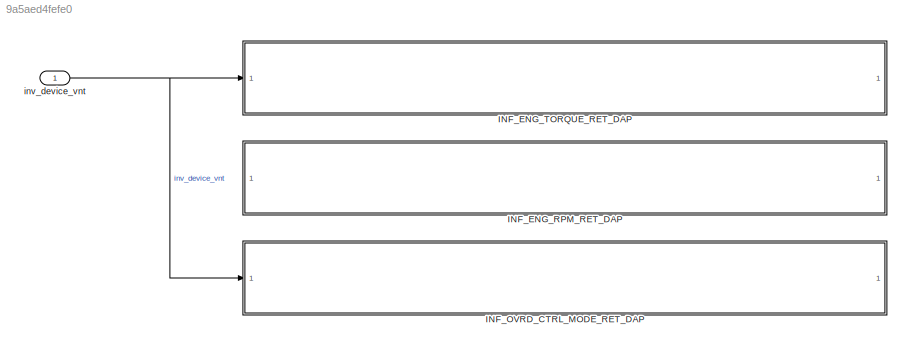
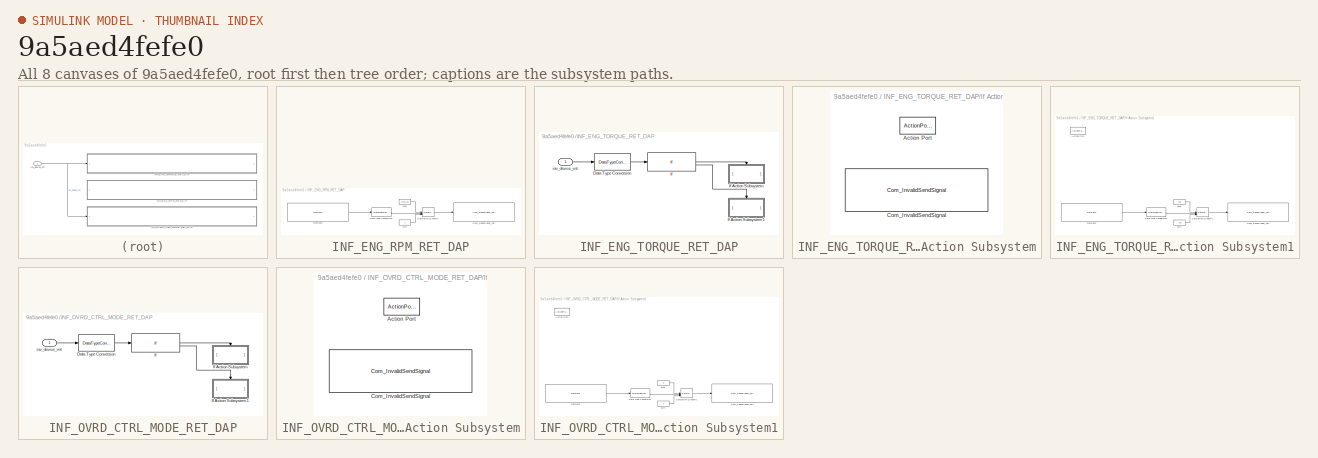
[diagram: thumbnail index - all 8 canvases of the model, root first then tree order]
MODEL slx_9a5aed4fefe0
KIND model
CONFIG AbsTol = auto
CONFIG EnableMultiTasking = off
CONFIG FixedStep = auto
CONFIG MaxStep = auto
CONFIG MinStep = auto
CONFIG RelTol = 1e-3
CONFIG SampleTimeConstraint = Unconstrained
CONFIG SolverName = VariableStepAuto
CONFIG StartTime = 0.0
CONFIG StopTime = 10.0
BLOCK [SubSystem] INF_ENG_RPM_RET_DAP
  RTWSystemCode = Nonreusable function
  TreatAsAtomicUnit = on
BLOCK [Reference] INF_ENG_RPM_RET_DAP/Com_SendSignal_call  REF=user_lib/Com_SendSignal_call
  SourceBlock = user_lib/Com_SendSignal_call
  SourceProductName = User Defined for IFLayer
BLOCK [DataTypeConversion] INF_ENG_RPM_RET_DAP/Data Type Conversion
  ConvertRealWorld = Stored Integer (SI)
  RndMeth = Floor
  SaturateOnIntegerOverflow = off
BLOCK [Reference] INF_ENG_RPM_RET_DAP/GetData  REF=user_lib/GetData
  SourceBlock = user_lib/GetData
  SourceProductName = User Defined for IFLayer
BLOCK [Constant] INF_ENG_RPM_RET_DAP/Max
  OutDataTypeStr = Inherit: Inherit via back propagation
  Value = 8191.88
BLOCK [Constant] INF_ENG_RPM_RET_DAP/Min
  OutDataTypeStr = Inherit: Inherit via back propagation
  Value = 0
BLOCK [Reference] INF_ENG_RPM_RET_DAP/Saturation Dynamic  REF=simulink/Discontinuities/Saturation
Dynamic
  SourceBlock = simulink/Discontinuities/Saturation\nDynamic
  SourceType = Saturation Dynamic
BLOCK [SubSystem] INF_ENG_TORQUE_RET_DAP
  RTWSystemCode = Nonreusable function
  TreatAsAtomicUnit = on
BLOCK [DataTypeConversion] INF_ENG_TORQUE_RET_DAP/Data Type Conversion
  OutDataTypeStr = uint8
  RndMeth = Floor
  SaturateOnIntegerOverflow = off
BLOCK [If] INF_ENG_TORQUE_RET_DAP/If
  IfExpression = u1 == 1
BLOCK [SubSystem] INF_ENG_TORQUE_RET_DAP/If Action Subsystem
  TreatAsAtomicUnit = on
BLOCK [ActionPort] INF_ENG_TORQUE_RET_DAP/If Action Subsystem/Action Port
BLOCK [Reference] INF_ENG_TORQUE_RET_DAP/If Action Subsystem/Com_InvalidSendSignal  REF=user_lib/Com_InvalidSendSignal
  SourceBlock = user_lib/Com_InvalidSendSignal
  SourceProductName = User Defined for IFLayer
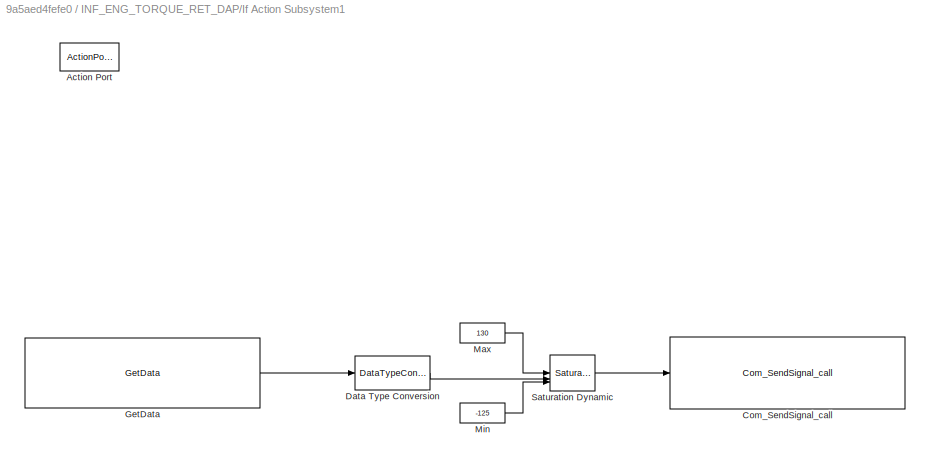
BLOCK [SubSystem] INF_ENG_TORQUE_RET_DAP/If Action Subsystem1
  TreatAsAtomicUnit = on
BLOCK [ActionPort] INF_ENG_TORQUE_RET_DAP/If Action Subsystem1/Action Port
BLOCK [Reference] INF_ENG_TORQUE_RET_DAP/If Action Subsystem1/Com_SendSignal_call  REF=user_lib/Com_SendSignal_call
  SourceBlock = user_lib/Com_SendSignal_call
  SourceProductName = User Defined for IFLayer
BLOCK [DataTypeConversion] INF_ENG_TORQUE_RET_DAP/If Action Subsystem1/Data Type Conversion
  ConvertRealWorld = Stored Integer (SI)
  RndMeth = Floor
  SaturateOnIntegerOverflow = off
BLOCK [Reference] INF_ENG_TORQUE_RET_DAP/If Action Subsystem1/GetData  REF=user_lib/GetData
  SourceBlock = user_lib/GetData
  SourceProductName = User Defined for IFLayer
BLOCK [Constant] INF_ENG_TORQUE_RET_DAP/If Action Subsystem1/Max
  OutDataTypeStr = Inherit: Inherit via back propagation
  Value = 130
BLOCK [Constant] INF_ENG_TORQUE_RET_DAP/If Action Subsystem1/Min
  OutDataTypeStr = Inherit: Inherit via back propagation
  Value = -125
BLOCK [Reference] INF_ENG_TORQUE_RET_DAP/If Action Subsystem1/Saturation Dynamic  REF=simulink/Discontinuities/Saturation
Dynamic
  SourceBlock = simulink/Discontinuities/Saturation\nDynamic
  SourceType = Saturation Dynamic
BLOCK [Inport] INF_ENG_TORQUE_RET_DAP/inv_device_vnt
BLOCK [SubSystem] INF_OVRD_CTRL_MODE_RET_DAP
  RTWSystemCode = Nonreusable function
  TreatAsAtomicUnit = on
BLOCK [DataTypeConversion] INF_OVRD_CTRL_MODE_RET_DAP/Data Type Conversion
  OutDataTypeStr = uint8
  RndMeth = Floor
  SaturateOnIntegerOverflow = off
BLOCK [If] INF_OVRD_CTRL_MODE_RET_DAP/If
  IfExpression = u1 == 1
BLOCK [SubSystem] INF_OVRD_CTRL_MODE_RET_DAP/If Action Subsystem
  TreatAsAtomicUnit = on
BLOCK [ActionPort] INF_OVRD_CTRL_MODE_RET_DAP/If Action Subsystem/Action Port
BLOCK [Reference] INF_OVRD_CTRL_MODE_RET_DAP/If Action Subsystem/Com_InvalidSendSignal  REF=user_lib/Com_InvalidSendSignal
  SourceBlock = user_lib/Com_InvalidSendSignal
  SourceProductName = User Defined for IFLayer
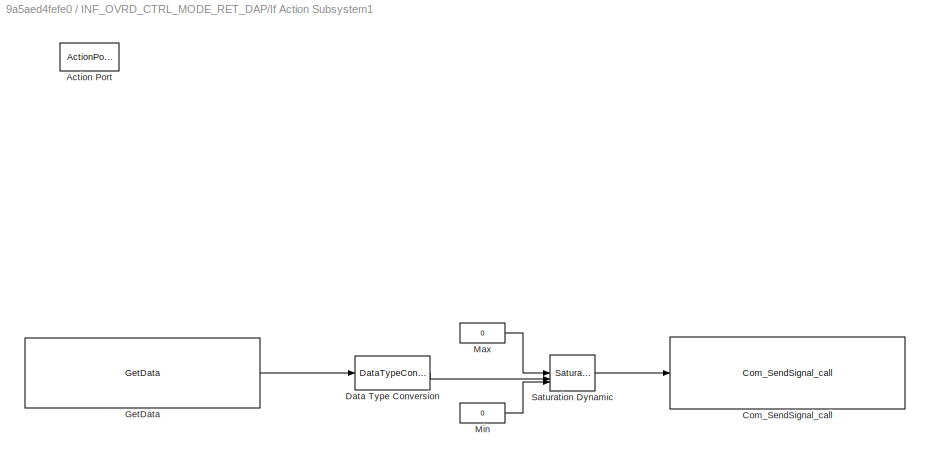
BLOCK [SubSystem] INF_OVRD_CTRL_MODE_RET_DAP/If Action Subsystem1
  TreatAsAtomicUnit = on
BLOCK [ActionPort] INF_OVRD_CTRL_MODE_RET_DAP/If Action Subsystem1/Action Port
BLOCK [Reference] INF_OVRD_CTRL_MODE_RET_DAP/If Action Subsystem1/Com_SendSignal_call  REF=user_lib/Com_SendSignal_call
  SourceBlock = user_lib/Com_SendSignal_call
  SourceProductName = User Defined for IFLayer
BLOCK [DataTypeConversion] INF_OVRD_CTRL_MODE_RET_DAP/If Action Subsystem1/Data Type Conversion
  ConvertRealWorld = Stored Integer (SI)
  RndMeth = Floor
  SaturateOnIntegerOverflow = off
BLOCK [Reference] INF_OVRD_CTRL_MODE_RET_DAP/If Action Subsystem1/GetData  REF=user_lib/GetData
  SourceBlock = user_lib/GetData
  SourceProductName = User Defined for IFLayer
BLOCK [Constant] INF_OVRD_CTRL_MODE_RET_DAP/If Action Subsystem1/Max
  OutDataTypeStr = Inherit: Inherit via back propagation
  Value = 0
BLOCK [Constant] INF_OVRD_CTRL_MODE_RET_DAP/If Action Subsystem1/Min
  OutDataTypeStr = Inherit: Inherit via back propagation
  Value = 0
BLOCK [Reference] INF_OVRD_CTRL_MODE_RET_DAP/If Action Subsystem1/Saturation Dynamic  REF=simulink/Discontinuities/Saturation
Dynamic
  SourceBlock = simulink/Discontinuities/Saturation\nDynamic
  SourceType = Saturation Dynamic
BLOCK [Inport] INF_OVRD_CTRL_MODE_RET_DAP/inv_device_vnt
BLOCK [Inport] inv_device_vnt
LINE INF_ENG_RPM_RET_DAP/Data Type Conversion:1 -> INF_ENG_RPM_RET_DAP/Saturation Dynamic:2
LINE INF_ENG_RPM_RET_DAP/GetData:1 -> INF_ENG_RPM_RET_DAP/Data Type Conversion:1
LINE INF_ENG_RPM_RET_DAP/Max:1 -> INF_ENG_RPM_RET_DAP/Saturation Dynamic:1
LINE INF_ENG_RPM_RET_DAP/Min:1 -> INF_ENG_RPM_RET_DAP/Saturation Dynamic:3
LINE INF_ENG_RPM_RET_DAP/Saturation Dynamic:1 -> INF_ENG_RPM_RET_DAP/Com_SendSignal_call:1
LINE INF_ENG_TORQUE_RET_DAP/Data Type Conversion:1 -> INF_ENG_TORQUE_RET_DAP/If:1
LINE INF_ENG_TORQUE_RET_DAP/If Action Subsystem1/Data Type Conversion:1 -> INF_ENG_TORQUE_RET_DAP/If Action Subsystem1/Saturation Dynamic:2
LINE INF_ENG_TORQUE_RET_DAP/If Action Subsystem1/GetData:1 -> INF_ENG_TORQUE_RET_DAP/If Action Subsystem1/Data Type Conversion:1
LINE INF_ENG_TORQUE_RET_DAP/If Action Subsystem1/Max:1 -> INF_ENG_TORQUE_RET_DAP/If Action Subsystem1/Saturation Dynamic:1
LINE INF_ENG_TORQUE_RET_DAP/If Action Subsystem1/Min:1 -> INF_ENG_TORQUE_RET_DAP/If Action Subsystem1/Saturation Dynamic:3
LINE INF_ENG_TORQUE_RET_DAP/If Action Subsystem1/Saturation Dynamic:1 -> INF_ENG_TORQUE_RET_DAP/If Action Subsystem1/Com_SendSignal_call:1
LINE INF_ENG_TORQUE_RET_DAP/If:1 -> INF_ENG_TORQUE_RET_DAP/If Action Subsystem:ifaction
LINE INF_ENG_TORQUE_RET_DAP/If:2 -> INF_ENG_TORQUE_RET_DAP/If Action Subsystem1:ifaction
LINE INF_ENG_TORQUE_RET_DAP/inv_device_vnt:1 -> INF_ENG_TORQUE_RET_DAP/Data Type Conversion:1
LINE INF_OVRD_CTRL_MODE_RET_DAP/Data Type Conversion:1 -> INF_OVRD_CTRL_MODE_RET_DAP/If:1
LINE INF_OVRD_CTRL_MODE_RET_DAP/If Action Subsystem1/Data Type Conversion:1 -> INF_OVRD_CTRL_MODE_RET_DAP/If Action Subsystem1/Saturation Dynamic:2
LINE INF_OVRD_CTRL_MODE_RET_DAP/If Action Subsystem1/GetData:1 -> INF_OVRD_CTRL_MODE_RET_DAP/If Action Subsystem1/Data Type Conversion:1
LINE INF_OVRD_CTRL_MODE_RET_DAP/If Action Subsystem1/Max:1 -> INF_OVRD_CTRL_MODE_RET_DAP/If Action Subsystem1/Saturation Dynamic:1
LINE INF_OVRD_CTRL_MODE_RET_DAP/If Action Subsystem1/Min:1 -> INF_OVRD_CTRL_MODE_RET_DAP/If Action Subsystem1/Saturation Dynamic:3
LINE INF_OVRD_CTRL_MODE_RET_DAP/If Action Subsystem1/Saturation Dynamic:1 -> INF_OVRD_CTRL_MODE_RET_DAP/If Action Subsystem1/Com_SendSignal_call:1
LINE INF_OVRD_CTRL_MODE_RET_DAP/If:1 -> INF_OVRD_CTRL_MODE_RET_DAP/If Action Subsystem:ifaction
LINE INF_OVRD_CTRL_MODE_RET_DAP/If:2 -> INF_OVRD_CTRL_MODE_RET_DAP/If Action Subsystem1:ifaction
LINE INF_OVRD_CTRL_MODE_RET_DAP/inv_device_vnt:1 -> INF_OVRD_CTRL_MODE_RET_DAP/Data Type Conversion:1
NET inv_device_vnt:1 -> INF_ENG_TORQUE_RET_DAP:1, INF_OVRD_CTRL_MODE_RET_DAP:1
note: NET lines group one-source signal fan-out (src -> all destinations, sorted); 1:1 wires keep LINE
